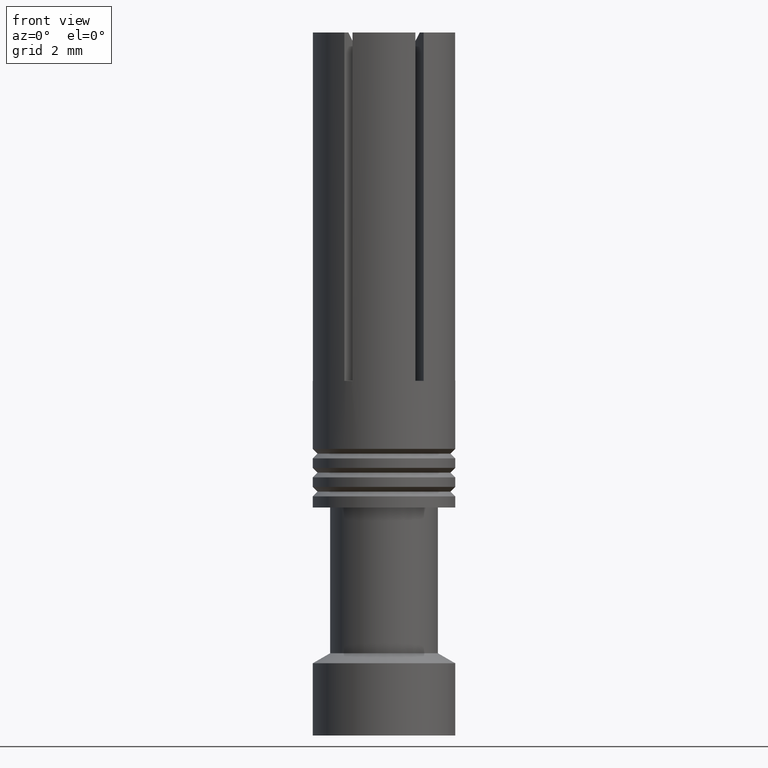
[diagram: clean part render]
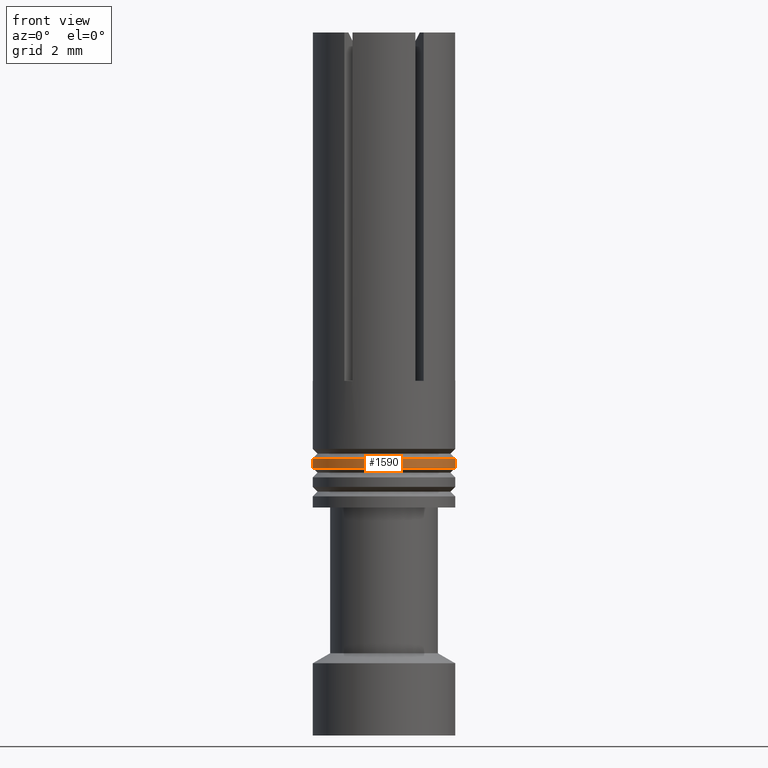
[diagram: same view with one face highlighted and labeled with its STEP entity id]
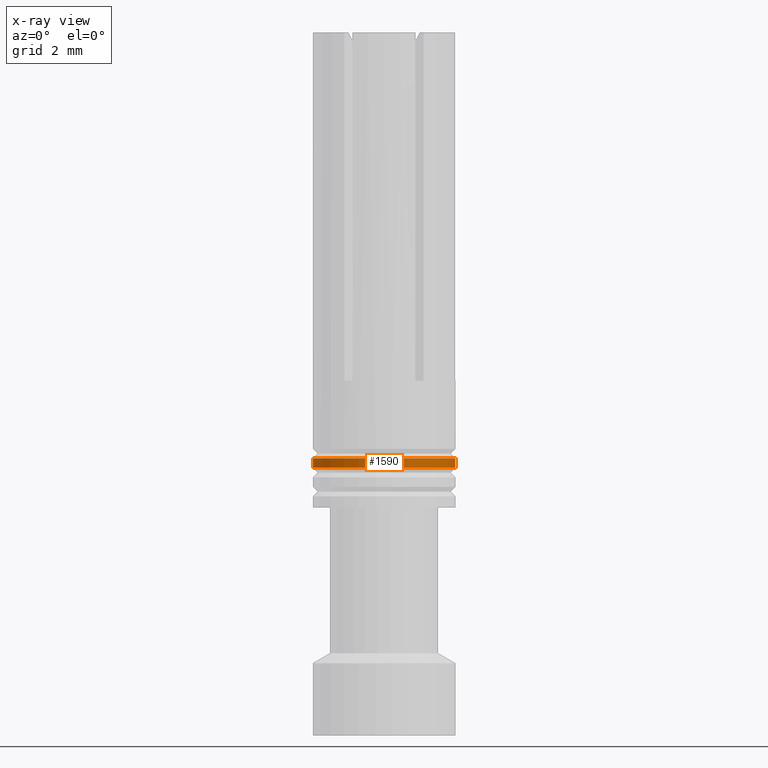
[diagram: x-ray of the same camera — body ghosted, the highlighted face saturated]
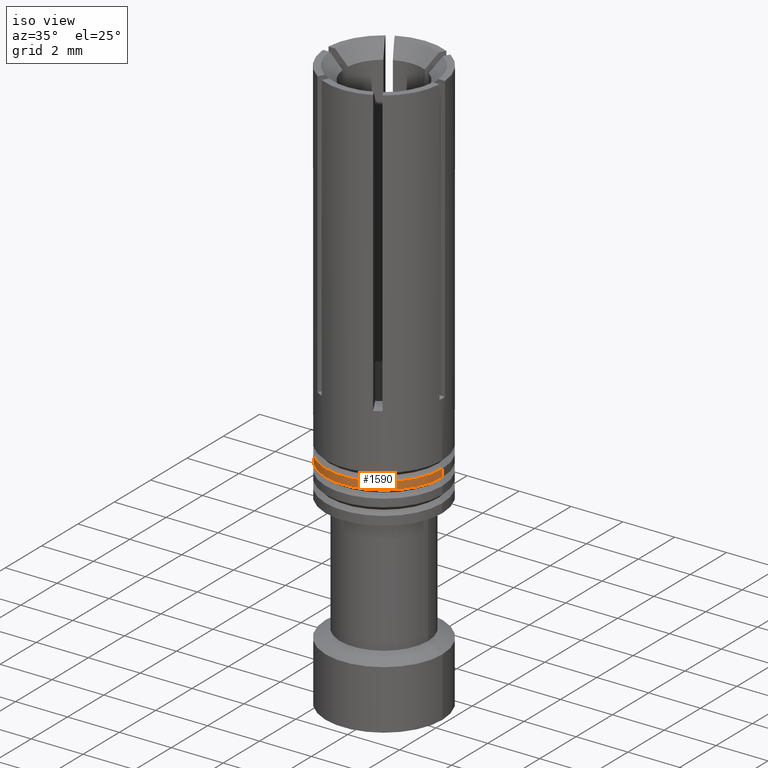
[diagram: same view with one face highlighted and labeled with its STEP entity id]
A machine part, front view. The second image highlights one B-rep face of the part: STEP entity #1590.
The next image is the same camera in x-ray: the body ghosted, the highlighted face saturated — about 0% of this face is hidden behind the body in this view.
A second angle (iso view) of the same face is appended — the face is thin or edge-on in the first view.
In plain terms, the highlighted cylindrical surface (partial cylindrical patch) has radius 2.25 mm, axis along (0, 0, 1).
Its self-contained STEP definition (entity closure, byte-faithful):
#230 = CARTESIAN_POINT ( 'NONE',  ( 2.250000000000000000, 2.755455298081544285E-16, 346.5500000000000114 ) ) ;
#312 = CIRCLE ( 'NONE', #1867, 2.250000000000000000 ) ;
#325 = FACE_OUTER_BOUND ( 'NONE', #359, .T. ) ;
#335 = CARTESIAN_POINT ( 'NONE',  ( -2.250000000000000000, 2.755455298081544285E-16, 345.0000000000000000 ) ) ;
#359 = EDGE_LOOP ( 'NONE', ( #1986, #1067, #1567, #578 ) ) ;
#504 = VERTEX_POINT ( 'NONE', #507 ) ;
#507 = CARTESIAN_POINT ( 'NONE',  ( 2.250000000000000000, 0.000000000000000000, 346.2500000000000000 ) ) ;
#516 = DIRECTION ( 'NONE',  ( 0.000000000000000000, 0.000000000000000000, 1.000000000000000000 ) ) ;
#573 = EDGE_CURVE ( 'NONE', #2082, #1759, #2071, .T. ) ;
#578 = ORIENTED_EDGE ( 'NONE', *, *, #573, .F. ) ;
#666 = CARTESIAN_POINT ( 'NONE',  ( 0.000000000000000000, 0.000000000000000000, 345.0000000000000000 ) ) ;
#685 = EDGE_CURVE ( 'NONE', #504, #1759, #1889, .T. ) ;
#781 = VECTOR ( 'NONE', #516, 1000.000000000000000 ) ;
#1035 = CARTESIAN_POINT ( 'NONE',  ( 0.000000000000000000, 0.000000000000000000, 346.2500000000000000 ) ) ;
#1050 = EDGE_CURVE ( 'NONE', #1749, #2082, #2067, .T. ) ;
#1067 = ORIENTED_EDGE ( 'NONE', *, *, #1597, .T. ) ;
#1377 = DIRECTION ( 'NONE',  ( 0.000000000000000000, 0.000000000000000000, 1.000000000000000000 ) ) ;
#1419 = CARTESIAN_POINT ( 'NONE',  ( -2.250000000000000000, 2.755455298081544285E-16, 346.2500000000000000 ) ) ;
#1506 = CARTESIAN_POINT ( 'NONE',  ( 0.000000000000000000, 0.000000000000000000, 346.5500000000000114 ) ) ;
#1533 = CYLINDRICAL_SURFACE ( 'NONE', #2230, 2.250000000000000000 ) ;
#1543 = DIRECTION ( 'NONE',  ( 0.000000000000000000, 0.000000000000000000, 1.000000000000000000 ) ) ;
#1555 = DIRECTION ( 'NONE',  ( 1.000000000000000000, 0.000000000000000000, 0.000000000000000000 ) ) ;
#1567 = ORIENTED_EDGE ( 'NONE', *, *, #685, .T. ) ;
#1590 = ADVANCED_FACE ( 'NONE', ( #325 ), #1533, .T. ) ;
#1597 = EDGE_CURVE ( 'NONE', #1749, #504, #312, .T. ) ;
#1709 = VECTOR ( 'NONE', #1735, 1000.000000000000000 ) ;
#1715 = DIRECTION ( 'NONE',  ( 1.000000000000000000, 0.000000000000000000, 0.000000000000000000 ) ) ;
#1717 = CARTESIAN_POINT ( 'NONE',  ( 2.250000000000000000, 0.000000000000000000, 345.0000000000000000 ) ) ;
#1735 = DIRECTION ( 'NONE',  ( 0.000000000000000000, 0.000000000000000000, 1.000000000000000000 ) ) ;
#1748 = AXIS2_PLACEMENT_3D ( 'NONE', #1506, #2180, #1866 ) ;
#1749 = VERTEX_POINT ( 'NONE', #1419 ) ;
#1759 = VERTEX_POINT ( 'NONE', #230 ) ;
#1849 = CARTESIAN_POINT ( 'NONE',  ( -2.250000000000000000, 0.000000000000000000, 346.5500000000000114 ) ) ;
#1866 = DIRECTION ( 'NONE',  ( 1.000000000000000000, 0.000000000000000000, 0.000000000000000000 ) ) ;
#1867 = AXIS2_PLACEMENT_3D ( 'NONE', #1035, #1377, #1715 ) ;
#1889 = LINE ( 'NONE', #1717, #1709 ) ;
#1986 = ORIENTED_EDGE ( 'NONE', *, *, #1050, .F. ) ;
#2067 = LINE ( 'NONE', #335, #781 ) ;
#2071 = CIRCLE ( 'NONE', #1748, 2.250000000000000000 ) ;
#2082 = VERTEX_POINT ( 'NONE', #1849 ) ;
#2180 = DIRECTION ( 'NONE',  ( 0.000000000000000000, 0.000000000000000000, 1.000000000000000000 ) ) ;
#2230 = AXIS2_PLACEMENT_3D ( 'NONE', #666, #1543, #1555 ) ;